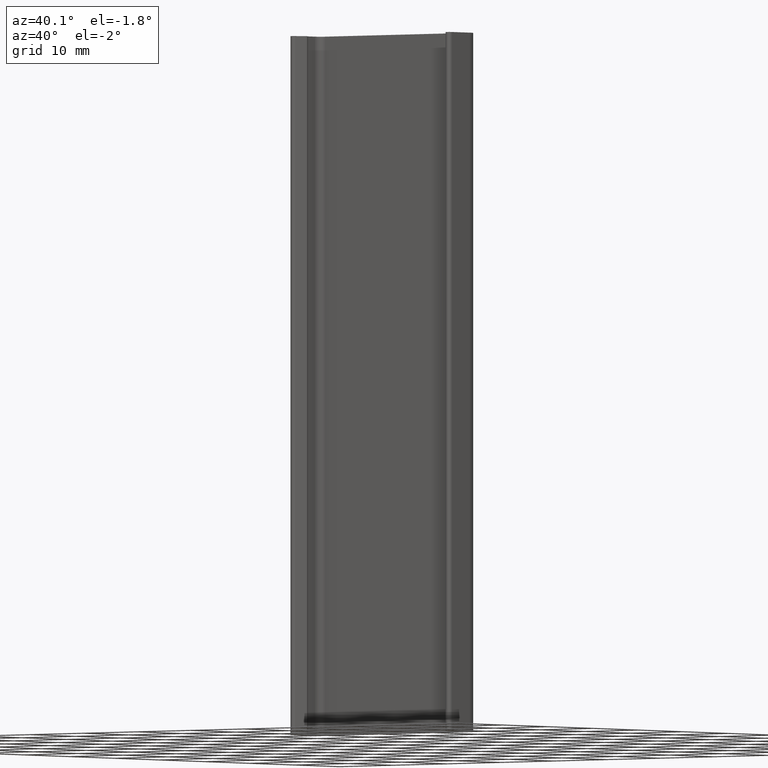
[diagram: clean part render]
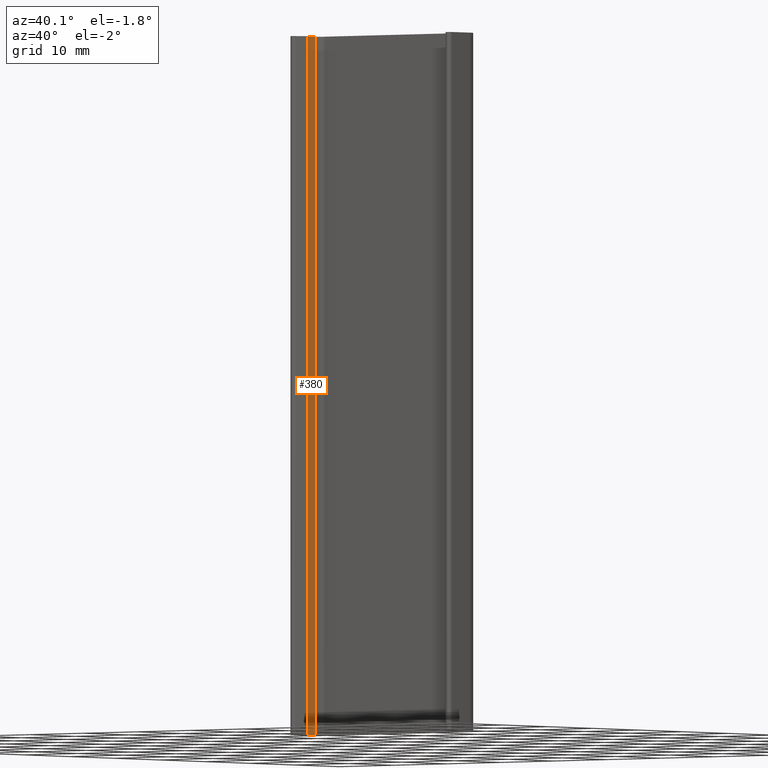
[diagram: same view with one face highlighted and labeled with its STEP entity id]
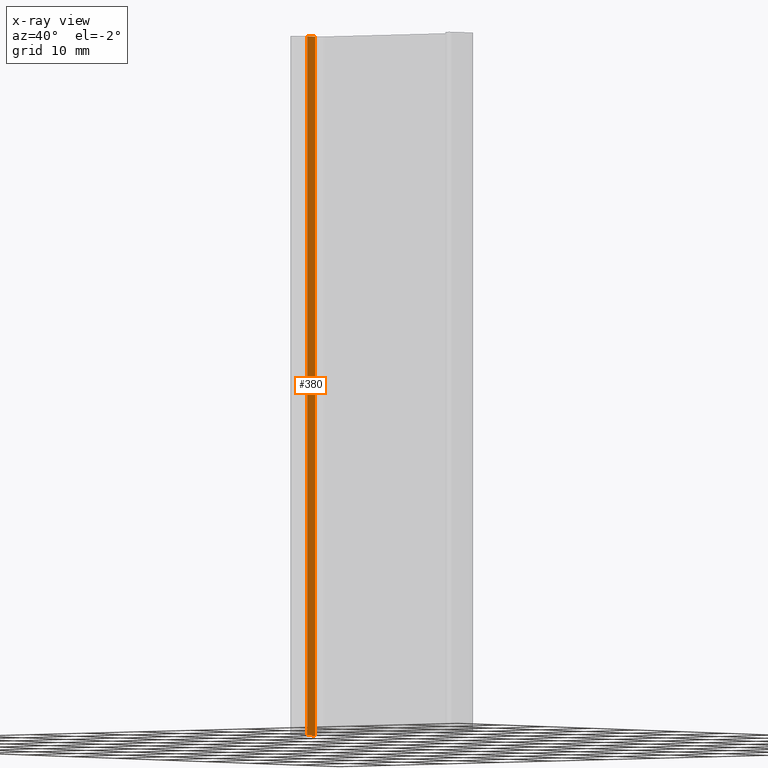
[diagram: x-ray of the same camera — body ghosted, the highlighted face saturated]
A machine part, auxiliary view. The second image highlights one B-rep face of the part: STEP entity #380.
The next image is the same camera in x-ray: the body ghosted, the highlighted face saturated — about 0% of this face is hidden behind the body in this view.
In plain terms, the highlighted planar face has unit normal (-1, -0, 0).
Its self-contained STEP definition (entity closure, byte-faithful):
#54=FACE_OUTER_BOUND('',#74,.T.);
#74=EDGE_LOOP('',(#305,#306,#307,#308));
#111=LINE('',#631,#149);
#112=LINE('',#634,#150);
#113=LINE('',#636,#151);
#114=LINE('',#637,#152);
#149=VECTOR('',#515,100.);
#150=VECTOR('',#518,1.7057359312764);
#151=VECTOR('',#519,1.7057359312764);
#152=VECTOR('',#520,100.);
#187=VERTEX_POINT('',#627);
#188=VERTEX_POINT('',#629);
#189=VERTEX_POINT('',#633);
#190=VERTEX_POINT('',#635);
#237=EDGE_CURVE('',#188,#187,#111,.T.);
#238=EDGE_CURVE('',#187,#189,#112,.T.);
#239=EDGE_CURVE('',#190,#188,#113,.T.);
#240=EDGE_CURVE('',#190,#189,#114,.T.);
#305=ORIENTED_EDGE('',*,*,#238,.F.);
#306=ORIENTED_EDGE('',*,*,#237,.F.);
#307=ORIENTED_EDGE('',*,*,#239,.F.);
#308=ORIENTED_EDGE('',*,*,#240,.T.);
#361=PLANE('',#416);
#380=ADVANCED_FACE('',(#54),#361,.F.);
#416=AXIS2_PLACEMENT_3D('',#632,#516,#517);
#515=DIRECTION('',(0.,0.,1.));
#516=DIRECTION('center_axis',(-1.,-6.50876260661505E-15,0.));
#517=DIRECTION('ref_axis',(6.57252030578093E-15,-1.,0.));
#518=DIRECTION('',(-6.50876260661505E-15,1.,0.));
#519=DIRECTION('',(6.50876260661505E-15,-1.,0.));
#520=DIRECTION('',(0.,0.,1.));
#627=CARTESIAN_POINT('',(-13.6999999999994,-4.00573593127639,100.));
#629=CARTESIAN_POINT('',(-13.6999999999994,-4.00573593127639,0.));
#631=CARTESIAN_POINT('',(-13.6999999999994,-4.00573593127639,0.));
#632=CARTESIAN_POINT('Origin',(-13.6999999999994,-2.29999999999998,0.));
#633=CARTESIAN_POINT('',(-13.6999999999994,-2.29999999999998,100.));
#634=CARTESIAN_POINT('',(-13.6999999999994,-3.90000000000003,100.));
#635=CARTESIAN_POINT('',(-13.6999999999994,-2.29999999999998,0.));
#636=CARTESIAN_POINT('',(-13.6999999999994,-3.90000000000003,0.));
#637=CARTESIAN_POINT('',(-13.6999999999994,-2.29999999999998,0.));